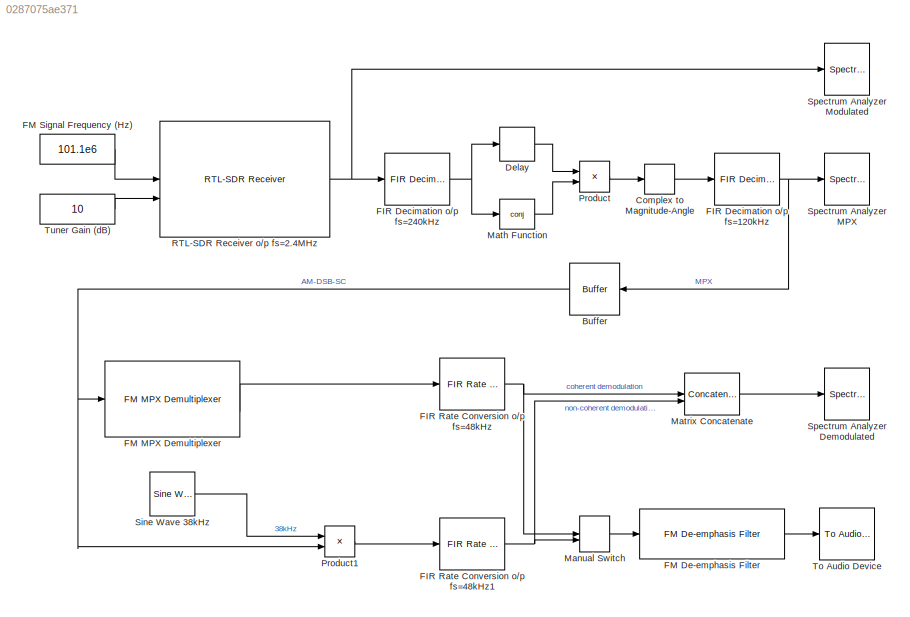
MODEL slx_0287075ae371
KIND model
CONFIG AbsTol = auto
CONFIG EnableMultiTasking = off
CONFIG FixedStep = auto
CONFIG MaxStep = auto
CONFIG MinStep = auto
CONFIG RelTol = 1e-3
CONFIG SampleTimeConstraint = Unconstrained
CONFIG SolverName = VariableStepAuto
CONFIG StartTime = 0.0
CONFIG StopTime = 10.0
BLOCK [Buffer] Buffer
  N = 4000
BLOCK [ComplexToMagnitudeAngle] Complex to Magnitude-Angle
  Output = Angle
BLOCK [Delay] Delay
  DelayLength = 1
  InitialCondition = 0
  InputPortMap = u0
  InputProcessing = Columns as channels (frame based)
BLOCK [Reference] FIR Decimation o//p fs=120kHz  REF=dspmlti4/FIR
Decimation
  SourceBlock = dspmlti4/FIR\nDecimation
  SourceType = FIR Decimation
  UserDataPersistent = on
BLOCK [Reference] FIR Decimation o//p fs=240kHz  REF=dspmlti4/FIR
Decimation
  SourceBlock = dspmlti4/FIR\nDecimation
  SourceType = FIR Decimation
  UserDataPersistent = on
BLOCK [Reference] FIR Rate Conversion o//p fs=48kHz  REF=dspmlti4/FIR Rate
Conversion
  SourceBlock = dspmlti4/FIR Rate\nConversion
  SourceType = FIR Rate Conversion
BLOCK [Reference] FIR Rate Conversion o//p fs=48kHz1  REF=dspmlti4/FIR Rate
Conversion
  SourceBlock = dspmlti4/FIR Rate\nConversion
  SourceType = FIR Rate Conversion
BLOCK [Reference] FM De-emphasis Filter  REF=rtlsdr_book_library/FM Demod Tools/FM De-emphasis Filter  (lib defined in slx_12414fe83126, slx_a1558d2e1022)
  SourceBlock = rtlsdr_book_library/FM Demod Tools/FM De-emphasis Filter
  SourceProductName = RTL-SDR Book Library
BLOCK [Reference] FM MPX Demultiplexer  REF=rtlsdr_book_library/FM Demod Tools/FM MPX Demultiplexer  (lib defined in slx_12414fe83126, slx_a1558d2e1022)
  SourceBlock = rtlsdr_book_library/FM Demod Tools/FM MPX Demultiplexer
  SourceProductName = RTL-SDR Book Library
BLOCK [Constant] FM Signal Frequency (Hz)
  Value = 101.1e6
BLOCK [ManualSwitch] Manual Switch
BLOCK [Math] Math Function
  Operator = conj
  SignedPower = on
BLOCK [Concatenate] Matrix Concatenate
  ConcatenateDimension = 2
  Mode = Multidimensional array
BLOCK [Product] Product
BLOCK [Product] Product1
  OutDataTypeStr = double
BLOCK [Reference] RTL-SDR Receiver o//p fs=2.4MHz  REF=sdrrlib/RTL-SDR
Receiver
  SourceBlock = sdrrlib/RTL-SDR\nReceiver
  SourceType = RTL-SDR Receiver
BLOCK [Reference] Sine Wave 38kHz  REF=dspsrcs4/Sine Wave
  SourceBlock = dspsrcs4/Sine Wave
  SourceType = Sine Wave
BLOCK [SpectrumAnalyzer] Spectrum Analyzer Demodulated
  AveragingMethod = Running
  AxesScaling = Manual
  DefaultConfigurationName = spbscopes.SpectrumAnalyzerBlockCfg
  GraphicalSettings = {"GraphicalSettings":{"Style":{"BackgroundColor":[0.12941176470588237,0.12941176470588237,0.12941176470588237],"AxesColor":[1,1,1],"LabelsColor":[0.09803921568627451,0.09803921568627451,0.09803921568627451],"PreserveColors":false,"Visible":[true,true],"LineStyle":["-","-"],"LineColor":[[0,0.44313725490196076,0.7372549019607844],[1,0.5450980392156862,0]],"LineWidth":[1.5,1.5],"Marker":["none","none...<+940ch>
  Method = Welch
  SampleRate = 48000
  ScopeFrameLocation = window
  ScopeSpecificationString = spbscopes.SpectrumAnalyzerBlockCfg('CurrentConfiguration', extmgr.ConfigurationSet(extmgr.Configuration('Core','General UI',true,'ShowStatusbar',false,'FigureColor',[0.941176470588235 0.941176470588235 0.941176470588235]),extmgr.Configuration('Core','Source UI',true),extmgr.Configuration('Sources','WiredSimulink',true),extmgr.Configuration('Sources','Simulink',false),extmgr.Configuration('Sources'...<+6594ch>
  ShowGrid = off
  ShowLegend = on
  Span = 400000
  StartFcn = startfcn_spectrum_analyzer;
  StartFrequency = -200000
  StopFrequency = 200000
  Visible = on
  WasSavedAsWebScope = on
  WindowPosition = [1084.000000,622.000000,778.000000,262.000000,]
  YLabel = dBm
  YLimits = [-90,25]
BLOCK [SpectrumAnalyzer] Spectrum Analyzer MPX
  AveragingMethod = Running
  AxesScaling = Manual
  DefaultConfigurationName = spbscopes.SpectrumAnalyzerBlockCfg
  GraphicalSettings = {"GraphicalSettings":{"Style":{"BackgroundColor":[0.12941176470588237,0.12941176470588237,0.12941176470588237],"AxesColor":[1,1,1],"LabelsColor":[0.09803921568627451,0.09803921568627451,0.09803921568627451],"PreserveColors":false,"Visible":[true],"LineStyle":["-"],"LineColor":[[0,0.44313725490196076,0.7372549019607844]],"LineWidth":[1.5],"Marker":["none"],"FontSize":"small"},"Cursors":{"Enabled":f...<+895ch>
  Method = Welch
  SampleRate = 120000
  ScopeFrameLocation = window
  ScopeSpecificationString = spbscopes.SpectrumAnalyzerBlockCfg('CurrentConfiguration', extmgr.ConfigurationSet(extmgr.Configuration('Core','General UI',true,'ShowStatusbar',false,'FigureColor',[0.941176470588235 0.941176470588235 0.941176470588235]),extmgr.Configuration('Core','Source UI',true),extmgr.Configuration('Sources','WiredSimulink',true),extmgr.Configuration('Sources','Simulink',false),extmgr.Configuration('Sources'...<+6571ch>
  ShowGrid = off
  Span = 400000
  StartFcn = startfcn_spectrum_analyzer;
  StartFrequency = -200000
  StopFrequency = 200000
  Visible = on
  WasSavedAsWebScope = on
  WindowPosition = [1085.000000,370.000000,778.000000,262.000000,]
  YLabel = dBm
BLOCK [SpectrumAnalyzer] Spectrum Analyzer Modulated
  AveragingMethod = Running
  AxesScaling = Manual
  DefaultConfigurationName = spbscopes.SpectrumAnalyzerBlockCfg
  GraphicalSettings = {"GraphicalSettings":{"Style":{"BackgroundColor":[0.12941176470588237,0.12941176470588237,0.12941176470588237],"AxesColor":[1,1,1],"LabelsColor":[0.09803921568627451,0.09803921568627451,0.09803921568627451],"PreserveColors":false,"Visible":[true],"LineStyle":["-"],"LineColor":[[0,0.44313725490196076,0.7372549019607844]],"LineWidth":[1.5],"Marker":["none"],"FontSize":"small"},"Cursors":{"Enabled":f...<+895ch>
  Method = Welch
  SampleRate = 240000
  ScopeFrameLocation = window
  ScopeSpecificationString = spbscopes.SpectrumAnalyzerBlockCfg('CurrentConfiguration', extmgr.ConfigurationSet(extmgr.Configuration('Core','General UI',true,'ShowStatusbar',false,'FigureColor',[0.941176470588235 0.941176470588235 0.941176470588235]),extmgr.Configuration('Core','Source UI',true),extmgr.Configuration('Sources','WiredSimulink',true),extmgr.Configuration('Visuals','Spectrum',true,'AxesProperties',struct('Color',...<+5917ch>
  ShowGrid = off
  Span = 400000
  StartFcn = startfcn_spectrum_analyzer;
  StartFrequency = -200000
  StopFrequency = 200000
  Visible = on
  WasSavedAsWebScope = on
  WindowPosition = [1085.000000,171.000000,778.000000,225.000000,]
  YLabel = dBm
  YLimits = [-69.383930992470468,32.02048051388072]
BLOCK [Reference] To Audio Device  REF=dspobslib/To Audio
Device
  SourceBlock = dspobslib/To Audio\nDevice
  SourceType = To Audio Device
BLOCK [Constant] Tuner Gain (dB)
  Value = 10
NET Buffer:1 -> FM MPX Demultiplexer:1, Product1:2
LINE Complex to Magnitude-Angle:1 -> FIR Decimation o//p fs=120kHz:1
LINE Delay:1 -> Product:1
NET FIR Decimation o//p fs=120kHz:1 -> Buffer:1, Spectrum Analyzer MPX:1
NET FIR Decimation o//p fs=240kHz:1 -> Delay:1, Math Function:1
NET FIR Rate Conversion o//p fs=48kHz1:1 -> Manual Switch:2, Matrix Concatenate:2
NET FIR Rate Conversion o//p fs=48kHz:1 -> Manual Switch:1, Matrix Concatenate:1
LINE FM De-emphasis Filter:1 -> To Audio Device:1
LINE FM MPX Demultiplexer:2 -> FIR Rate Conversion o//p fs=48kHz:1
LINE FM Signal Frequency (Hz):1 -> RTL-SDR Receiver o//p fs=2.4MHz:1
LINE Manual Switch:1 -> FM De-emphasis Filter:1
LINE Math Function:1 -> Product:2
LINE Matrix Concatenate:1 -> Spectrum Analyzer Demodulated:1
LINE Product1:1 -> FIR Rate Conversion o//p fs=48kHz1:1
LINE Product:1 -> Complex to Magnitude-Angle:1
NET RTL-SDR Receiver o//p fs=2.4MHz:1 -> FIR Decimation o//p fs=240kHz:1, Spectrum Analyzer Modulated:1
LINE Sine Wave 38kHz:1 -> Product1:1
LINE Tuner Gain (dB):1 -> RTL-SDR Receiver o//p fs=2.4MHz:2
note: NET lines group one-source signal fan-out (src -> all destinations, sorted); 1:1 wires keep LINE
